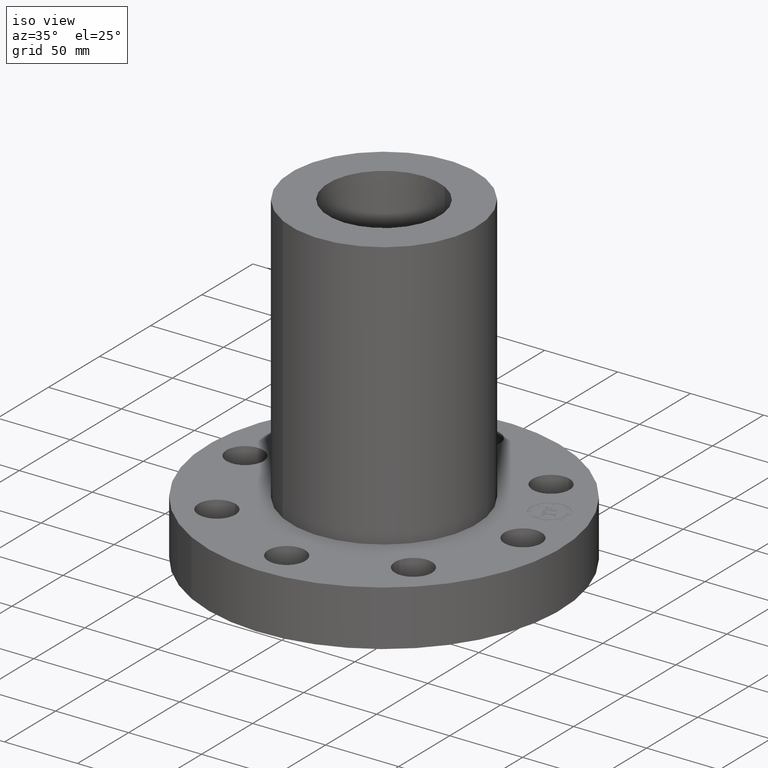
[diagram: clean part render]
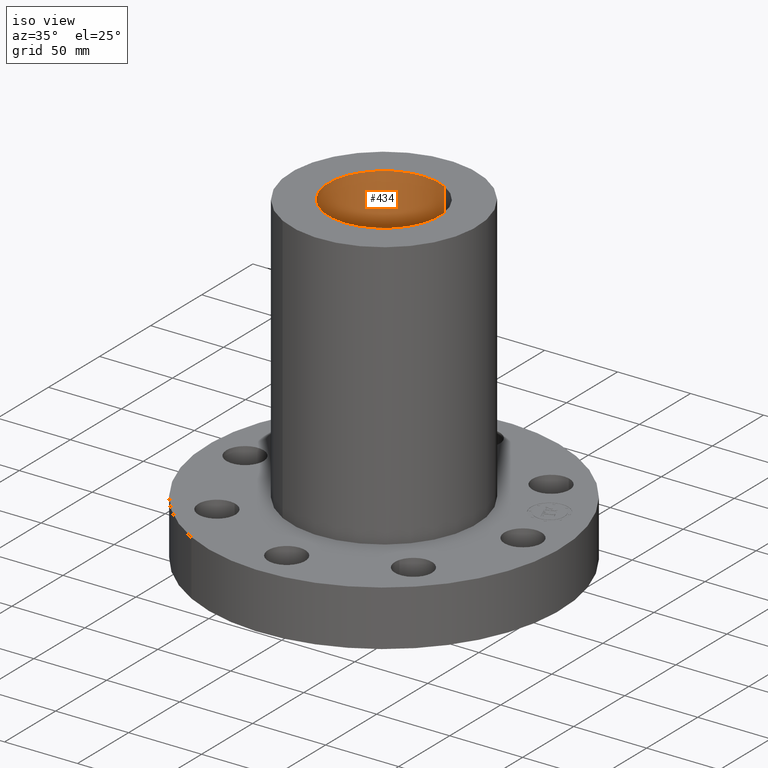
[diagram: same view with one face highlighted and labeled with its STEP entity id]
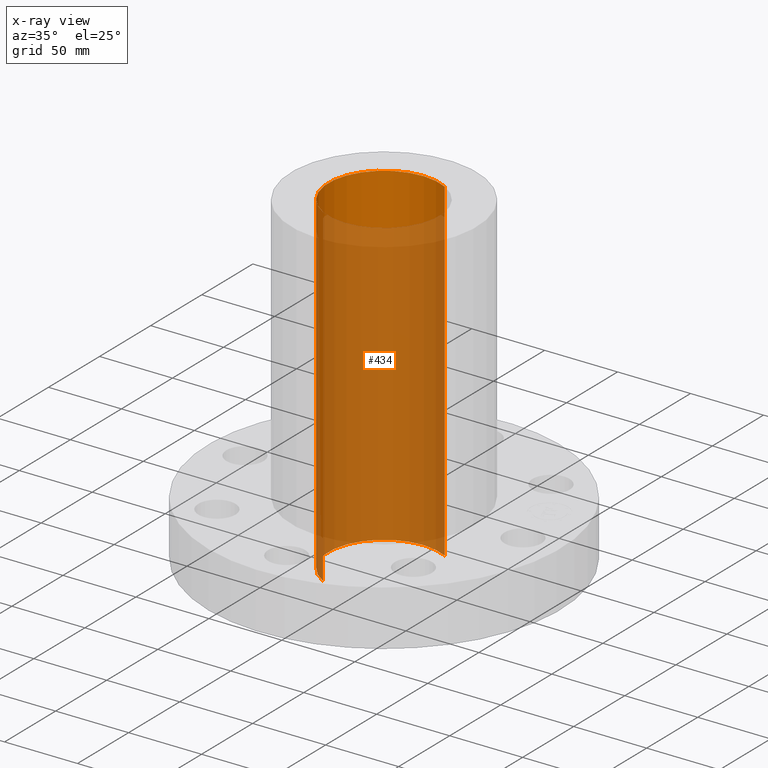
[diagram: x-ray of the same camera — body ghosted, the highlighted face saturated]
A machine part, iso view. The second image highlights one B-rep face of the part: STEP entity #434.
The next image is the same camera in x-ray: the body ghosted, the highlighted face saturated — about 85% of this face is hidden behind the body in this view.
In plain terms, the highlighted cylindrical surface (partial cylindrical patch) has radius 38.1 mm, axis along (0, 0, -1).
Its self-contained STEP definition (entity closure, byte-faithful):
#375=AXIS2_PLACEMENT_3D('Circle Axis2P3D',#373,#374,$) ;
#395=AXIS2_PLACEMENT_3D('Cylinder Axis2P3D',#392,#393,#394) ;
#425=AXIS2_PLACEMENT_3D('Circle Axis2P3D',#423,#424,$) ;
#373=CARTESIAN_POINT('Axis2P3D Location',(0.,0.,8.75000000003)) ;
#377=CARTESIAN_POINT('Vertex',(-0.719138307909,-1.31637384284,8.75000000004)) ;
#379=CARTESIAN_POINT('Vertex',(0.719138307909,1.31637384284,8.75000000004)) ;
#392=CARTESIAN_POINT('Axis2P3D Location',(0.,0.,4.25000000002)) ;
#397=CARTESIAN_POINT('Line Origine',(0.719138307909,1.31637384284,4.25000000002)) ;
#401=CARTESIAN_POINT('Vertex',(0.719138307909,1.31637384284,-0.250000000001)) ;
#408=CARTESIAN_POINT('Vertex',(-0.719138307909,-1.31637384284,-0.250000000001)) ;
#411=CARTESIAN_POINT('Line Origine',(-0.719138307909,-1.31637384284,4.25000000002)) ;
#423=CARTESIAN_POINT('Axis2P3D Location',(0.,0.,-0.250000000001)) ;
#374=DIRECTION('Axis2P3D Direction',(0.,0.,-0.0393700787402)) ;
#393=DIRECTION('Axis2P3D Direction',(0.,0.,-0.0393700787402)) ;
#394=DIRECTION('Axis2P3D XDirection',(-0.0188750212049,-0.0345504945626,0.)) ;
#398=DIRECTION('Vector Direction',(0.,0.,-0.0393700787402)) ;
#412=DIRECTION('Vector Direction',(0.,0.,-0.0393700787402)) ;
#424=DIRECTION('Axis2P3D Direction',(0.,0.,-0.0393700787402)) ;
#399=VECTOR('Line Direction',#398,0.0393700787402) ;
#413=VECTOR('Line Direction',#412,0.0393700787402) ;
#429=ORIENTED_EDGE('',*,*,#381,.F.) ;
#430=ORIENTED_EDGE('',*,*,#415,.T.) ;
#431=ORIENTED_EDGE('',*,*,#427,.T.) ;
#432=ORIENTED_EDGE('',*,*,#403,.F.) ;
#434=ADVANCED_FACE('PartBody',(#433),#396,.F.) ;
#376=CIRCLE('generated circle',#375,1.50000000001) ;
#426=CIRCLE('generated circle',#425,1.50000000001) ;
#396=CYLINDRICAL_SURFACE('generated cylinder',#395,1.50000000001) ;
#381=EDGE_CURVE('',#378,#380,#376,.T.) ;
#403=EDGE_CURVE('',#380,#402,#400,.T.) ;
#415=EDGE_CURVE('',#378,#409,#414,.T.) ;
#427=EDGE_CURVE('',#409,#402,#426,.T.) ;
#428=EDGE_LOOP('',(#429,#430,#431,#432)) ;
#433=FACE_OUTER_BOUND('',#428,.T.) ;
#400=LINE('Line',#397,#399) ;
#414=LINE('Line',#411,#413) ;
#378=VERTEX_POINT('',#377) ;
#380=VERTEX_POINT('',#379) ;
#402=VERTEX_POINT('',#401) ;
#409=VERTEX_POINT('',#408) ;